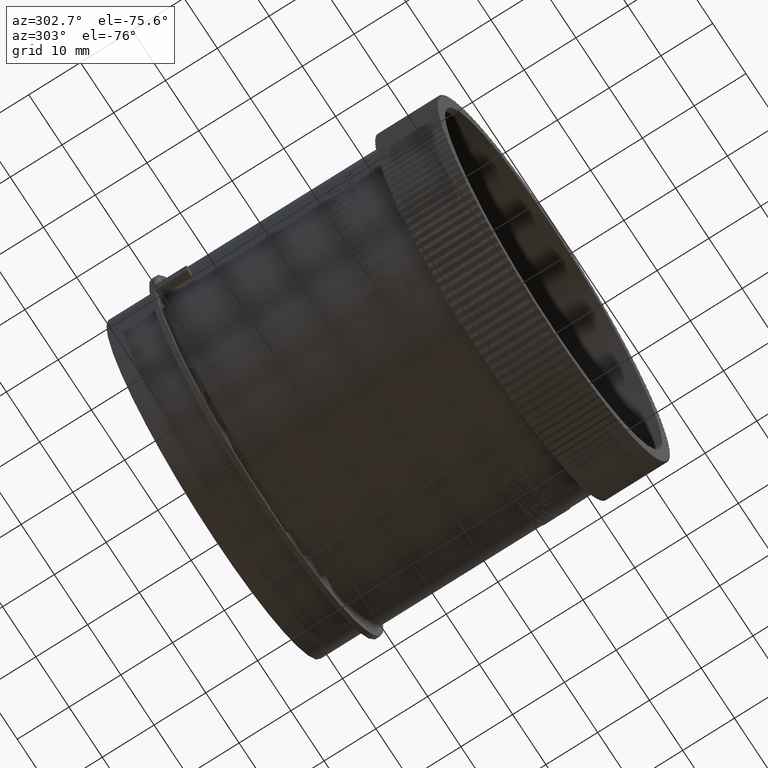
[diagram: clean part render]
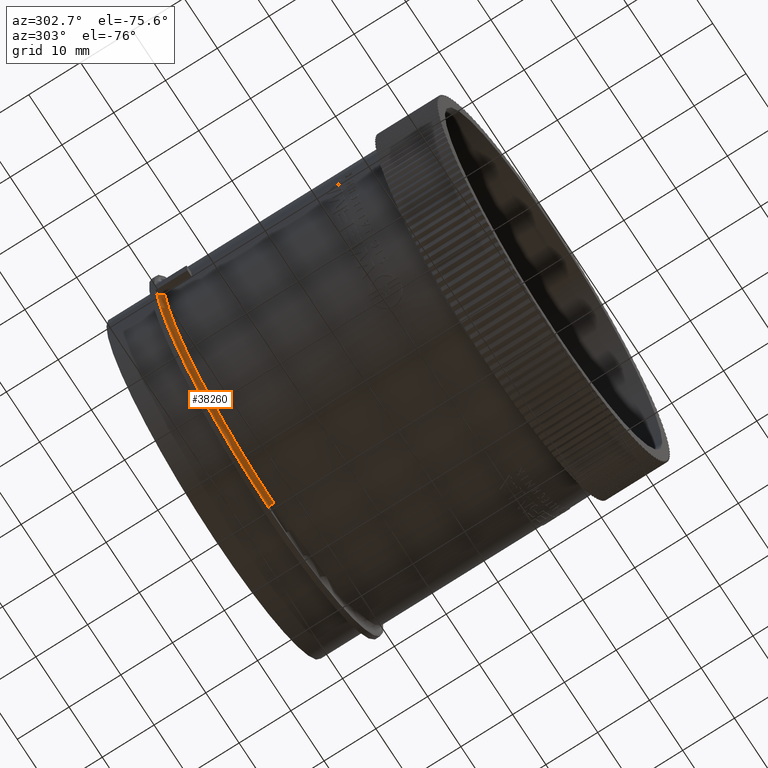
[diagram: same view with one face highlighted and labeled with its STEP entity id]
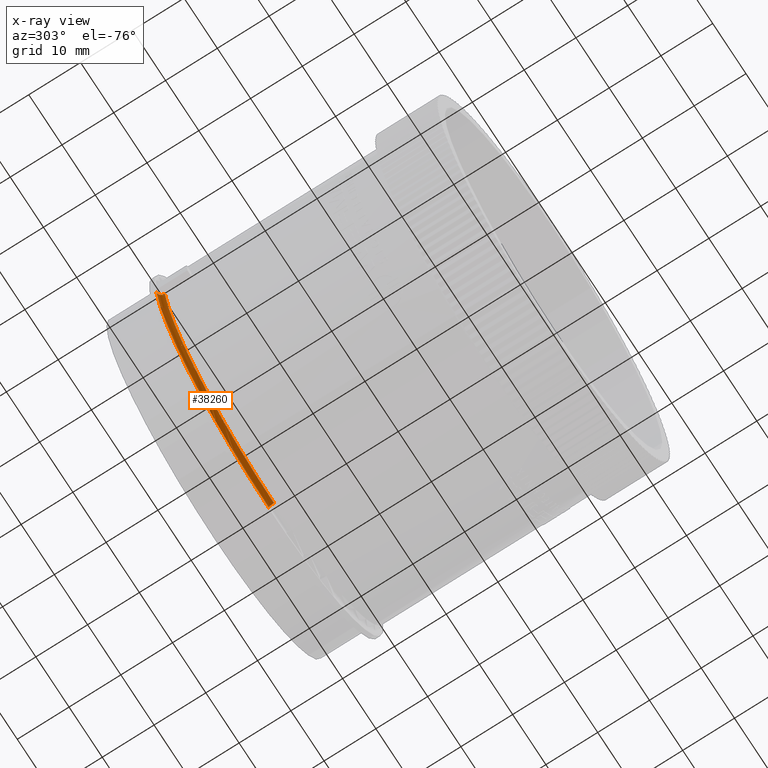
[diagram: x-ray of the same camera — body ghosted, the highlighted face saturated]
A machine part, auxiliary view. The second image highlights one B-rep face of the part: STEP entity #38260.
The next image is the same camera in x-ray: the body ghosted, the highlighted face saturated — about 0% of this face is hidden behind the body in this view.
In plain terms, the highlighted toroidal blend (fillet) surface has major radius 34.1 mm and minor (blend) radius 1 mm.
Its self-contained STEP definition (entity closure, byte-faithful):
#169 = CARTESIAN_POINT ( 'NONE',  ( -1.282664490863889300, 2.165354330708384000, -0.3964331924044282600 ) ) ;
#343 = CARTESIAN_POINT ( 'NONE',  ( -1.197073304359399500, 2.165354330705581800, -0.6078892121746987100 ) ) ;
#507 = CARTESIAN_POINT ( 'NONE',  ( -1.060198254568408300, 2.165354326473242400, -0.8237081716349248200 ) ) ;
#680 = CARTESIAN_POINT ( 'NONE',  ( -1.009187776710478700, 2.165354330642957700, -0.8854516595367594200 ) ) ;
#836 = CARTESIAN_POINT ( 'NONE',  ( -0.9471824442016545400, 2.165354326718651500, -0.9514897616183253200 ) ) ;
#1015 = CARTESIAN_POINT ( 'NONE',  ( -0.8346103294295806900, 2.165354330708566100, -1.051563099087176900 ) ) ;
#1184 = CARTESIAN_POINT ( 'NONE',  ( -0.7854531837904607000, 2.165354329822095200, -1.088783512074798200 ) ) ;
#1347 = CARTESIAN_POINT ( 'NONE',  ( -0.7230082499648047300, 2.165354326537197500, -1.131223731274377100 ) ) ;
#1498 = CARTESIAN_POINT ( 'NONE',  ( -0.6039387920076640900, 2.165354330708561600, -1.199006596578336500 ) ) ;
#1662 = CARTESIAN_POINT ( 'NONE',  ( -0.5435034612630185200, 2.165354329673638400, -1.227594138368329300 ) ) ;
#1829 = CARTESIAN_POINT ( 'NONE',  ( -0.4758498519653853700, 2.165354327160311500, -1.255387463876481300 ) ) ;
#2001 = CARTESIAN_POINT ( 'NONE',  ( -0.2289258029922482700, 2.165354328113090700, -1.322872054372719700 ) ) ;
#2171 = CARTESIAN_POINT ( 'NONE',  ( -0.1614192044583004100, 2.165354329956338000, -1.332793454672196700 ) ) ;
#2346 = CARTESIAN_POINT ( 'NONE',  ( -0.06576361073954722900, 2.165354330708968400, -1.340941770892593700 ) ) ;
#2629 = VERTEX_POINT ( 'NONE', #21823 ) ;
#2771 = DIRECTION ( 'NONE',  ( -1.000000000000000000, 0.0000000000000000000, -0.0000000000000000000 ) ) ;
#3894 = CARTESIAN_POINT ( 'NONE',  ( 0.0000000000000000000, 2.125984251968504600, 0.0000000000000000000 ) ) ;
#4003 = VERTEX_POINT ( 'NONE', #36291 ) ;
#4053 = CARTESIAN_POINT ( 'NONE',  ( -1.280467915328512300, 2.165354330708662900, -0.4034366420713405600 ) ) ;
#4219 = CARTESIAN_POINT ( 'NONE',  ( -1.183497001516208300, 2.165354330708550500, -0.6338020899899314800 ) ) ;
#4386 = CARTESIAN_POINT ( 'NONE',  ( -1.039204480240415900, 2.165354330202531800, -0.8499875682834737700 ) ) ;
#4551 = CARTESIAN_POINT ( 'NONE',  ( -0.9859676748288434000, 2.165354329585451200, -0.9111819016148193800 ) ) ;
#4725 = CARTESIAN_POINT ( 'NONE',  ( -0.9387874972623730900, 2.165354326546775600, -0.9597332104116022000 ) ) ;
#4902 = CARTESIAN_POINT ( 'NONE',  ( -0.8343675322937302900, 2.165354330708662500, -1.051755646996231300 ) ) ;
#5067 = CARTESIAN_POINT ( 'NONE',  ( -0.7808755878113815600, 2.165354329566798500, -1.092071053113567800 ) ) ;
#5232 = CARTESIAN_POINT ( 'NONE',  ( -0.7207666105685097700, 2.165354326530532600, -1.132653982159914400 ) ) ;
#5393 = CARTESIAN_POINT ( 'NONE',  ( -0.6018579160656021300, 2.165354330707052600, -1.200052832661127500 ) ) ;
#5568 = CARTESIAN_POINT ( 'NONE',  ( -0.5405441430751266600, 2.165354329532046800, -1.228902363002986500 ) ) ;
#5590 = AXIS2_PLACEMENT_3D ( 'NONE', #37184, #48655, #13806 ) ;
#5726 = CARTESIAN_POINT ( 'NONE',  ( -0.4271637060433467500, 2.165354328263154200, -1.272932397494876100 ) ) ;
#5899 = CARTESIAN_POINT ( 'NONE',  ( -0.2273670670312859500, 2.165354327919207100, -1.323141805480036100 ) ) ;
#6076 = CARTESIAN_POINT ( 'NONE',  ( -0.1472693433661430900, 2.165354330346546800, -1.334441874246228500 ) ) ;
#6240 = CARTESIAN_POINT ( 'NONE',  ( -0.01878574148268146600, 2.165354330420501000, -1.342526038514607800 ) ) ;
#7397 = ORIENTED_EDGE ( 'NONE', *, *, #32790, .T. ) ;
#7816 = DIRECTION ( 'NONE',  ( 0.0000000000000000000, 0.0000000000000000000, -1.000000000000000000 ) ) ;
#7974 = CARTESIAN_POINT ( 'NONE',  ( -1.280300942638733700, 2.165354330708656200, -0.4039662169849965700 ) ) ;
#8146 = CARTESIAN_POINT ( 'NONE',  ( -1.179934317546667700, 2.165354330708663300, -0.6404020524045201900 ) ) ;
#8312 = CARTESIAN_POINT ( 'NONE',  ( -1.030948388699091800, 2.165354330705076900, -0.8599467880319131600 ) ) ;
#8489 = CARTESIAN_POINT ( 'NONE',  ( -0.9849442664134934200, 2.165354329512011700, -0.9122883602291824700 ) ) ;
#8662 = CARTESIAN_POINT ( 'NONE',  ( -0.9368465142265640600, 2.165354326531646400, -0.9616271109147144200 ) ) ;
#8829 = CARTESIAN_POINT ( 'NONE',  ( -0.8342229212919131100, 2.165354330708647400, -1.051870295271908100 ) ) ;
#8996 = CARTESIAN_POINT ( 'NONE',  ( -0.7785728523033296200, 2.165354329425769100, -1.093714320261554000 ) ) ;
#9165 = CARTESIAN_POINT ( 'NONE',  ( -0.6826390132033954800, 2.165354327054265700, -1.156369368507191600 ) ) ;
#9326 = CARTESIAN_POINT ( 'NONE',  ( -0.5953739579539398800, 2.165354330711457100, -1.203290370390480000 ) ) ;
#9494 = CARTESIAN_POINT ( 'NONE',  ( -0.5264122967398990900, 2.165354328802469900, -1.235035407641711800 ) ) ;
#9654 = CARTESIAN_POINT ( 'NONE',  ( -0.3876795542433111300, 2.165354330002640100, -1.285376064790003400 ) ) ;
#9830 = CARTESIAN_POINT ( 'NONE',  ( -0.2219391580833532700, 2.165354327747548900, -1.324065652650011400 ) ) ;
#9988 = CARTESIAN_POINT ( 'NONE',  ( -0.1236057383186619000, 2.165354330693749900, -1.336869537673698100 ) ) ;
#10438 = ORIENTED_EDGE ( 'NONE', *, *, #11088, .F. ) ;
#10682 = CARTESIAN_POINT ( 'NONE',  ( -1.327041999721553900, 2.165354330708662500, -0.1655017135546710500 ) ) ;
#11088 = EDGE_CURVE ( 'NONE', #4003, #2629, #13712, .T. ) ;
#11891 = CARTESIAN_POINT ( 'NONE',  ( -1.279434268079202100, 2.165354330708547400, -0.4067074102289805500 ) ) ;
#12057 = CARTESIAN_POINT ( 'NONE',  ( -1.179063649970600400, 2.165354330708651400, -0.6420033884779496900 ) ) ;
#12219 = CARTESIAN_POINT ( 'NONE',  ( -1.029889316776893200, 2.165354330708664700, -0.8612125809875758000 ) ) ;
#12388 = CARTESIAN_POINT ( 'NONE',  ( -0.9844406102454441600, 2.165354329475003900, -0.9128320170642075800 ) ) ;
#12400 = CIRCLE ( 'NONE', #48833, 0.03937007874015724400 ) ;
#12555 = CARTESIAN_POINT ( 'NONE',  ( -0.9339771871338554700, 2.165354326522293400, -0.9644176709276655000 ) ) ;
#12727 = CARTESIAN_POINT ( 'NONE',  ( -0.8334387148666530000, 2.165354330708054900, -1.052491656306940200 ) ) ;
#12894 = CARTESIAN_POINT ( 'NONE',  ( -0.7723191916490600400, 2.165354329023515300, -1.098144790905479300 ) ) ;
#13063 = CARTESIAN_POINT ( 'NONE',  ( -0.6271785663116974400, 2.165354330235413900, -1.187069958265914800 ) ) ;
#13234 = CARTESIAN_POINT ( 'NONE',  ( -0.5724626028576013100, 2.165354330679005300, -1.214459660051672600 ) ) ;
#13406 = CARTESIAN_POINT ( 'NONE',  ( -0.5018126766266828300, 2.165354327575226300, -1.245259342361471300 ) ) ;
#13578 = CARTESIAN_POINT ( 'NONE',  ( -0.3577249080080661100, 2.165354330764452500, -1.294021814437498600 ) ) ;
#13712 = B_SPLINE_CURVE_WITH_KNOTS ( 'NONE', 3,
 ( #26265, #10682, #41844, #18595, #45719, #22486, #49610, #26433 ),
 .UNSPECIFIED., .F., .F.,
 ( 4, 2, 2, 4 ),
 ( 0.0000000000000000000, 0.0003906745936104586700, 0.0007813491872209173500, 0.001562698374441819700 ),
 .UNSPECIFIED. ) ;
#13752 = CARTESIAN_POINT ( 'NONE',  ( -0.2055463476719809100, 2.165354328114979900, -1.326734621654967800 ) ) ;
#13806 = DIRECTION ( 'NONE',  ( 0.0000000000000000000, 0.0000000000000000000, -1.000000000000000000 ) ) ;
#13920 = CARTESIAN_POINT ( 'NONE',  ( -0.1063882873390323100, 2.165354330708213900, -1.338298900031716900 ) ) ;
#15816 = CARTESIAN_POINT ( 'NONE',  ( -1.273948800795933200, 2.165354330704826400, -0.4236423548067626600 ) ) ;
#15999 = CARTESIAN_POINT ( 'NONE',  ( -1.174716802119554900, 2.165354330708528800, -0.6499496118122958200 ) ) ;
#16161 = CARTESIAN_POINT ( 'NONE',  ( -1.029799881095473800, 2.165354330708625600, -0.8613194202535045000 ) ) ;
#16326 = B_SPLINE_CURVE_WITH_KNOTS ( 'NONE', 3,
 ( #19619, #42866, #46743, #23509, #169, #27474, #4053, #31376, #7974, #35267, #11891, #39154, #15816, #43039, #19779, #46907, #23673, #343, #27650, #4219, #31540, #8146, #35436, #12057, #39311, #15999, #43210, #19946, #47077, #23866, #507, #27821, #4386, #31724, #8312, #35603, #12219, #39487, #16161, #43380, #20118, #47248, #24020, #680, #27994, #4551, #31890, #8489, #35771, #12388, #39653, #16336, #43550, #20289, #47427, #24191, #836, #28169, #4725, #32058, #8662, #35950, #12555, #39816, #16502, #43719, #20461, #47602, #24373, #1015, #28331, #4902, #32233, #8829, #36108, #12727, #39984, #16672, #43885, #20641, #47764, #24542, #1184, #28510, #5067, #32394, #8996, #36278, #12894, #40159, #16844, #44053, #20807, #47939, #24711, #1347, #28683, #5232, #32552, #9165, #36459, #13063, #40321, #17028, #44214, #20963, #48106, #24884, #1498, #28852, #5393, #32722, #9326, #36622, #13234, #40482, #17188, #44388, #21133, #48269, #25054, #1662, #29016, #5568, #32879, #9494, #36787, #13406, #40656, #17361, #44545, #21307, #48425, #25219, #1829, #29186, #5726, #33037, #9654, #36953, #13578, #40834, #17535, #44698, #21476, #48601, #25384, #2001, #29346, #5899, #33196, #9830, #37126, #13752, #40993, #17699, #44865, #21642, #48760, #25561, #2171, #29518, #6076, #33371, #9988, #37297, #13920, #41157, #17867, #45041, #21810, #48912, #25741, #2346, #29679, #6240, #33537 ),
 .UNSPECIFIED., .F., .F.,
 ( 4, 2, 1, 2, 2, 1, 1, 1, 2, 2, 2, 2, 2, 2, 1, 1, 1, 2, 2, 1, 1, 1, 2, 2, 1, 1, 2, 2, 2, 2, 2, 1, 1, 1, 1, 2, 2, 1, 2, 2, 1, 1, 1, 2, 1, 2, 2, 1, 1, 1, 1, 2, 2, 2, 2, 2, 1, 2, 2, 1, 1, 2, 2, 1, 1, 2, 1, 1, 2, 2, 1, 1, 2, 2, 2, 2, 1, 2, 2, 1, 1, 2, 2, 1, 1, 2, 2, 1, 2, 2, 2, 2, 2, 2, 1, 1, 2, 2, 2, 1, 2, 2, 2, 2, 2, 1, 2, 2, 1, 2, 4 ),
 ( 0.0000000000000000000, 0.02897238731376237200, 0.03078316152087253900, 0.03123585507265008400, 0.03134902846059450800, 0.03146220184853892900, 0.03168854862442768700, 0.03259393572798267200, 0.03621548414220261700, 0.04345858097064258400, 0.05794477462752246200, 0.06156632304174244200, 0.06247171014529742700, 0.06269805692118615700, 0.06292440369707488800, 0.06337709724885239000, 0.06518787145596242900, 0.07243096828440275000, 0.08691716194128343300, 0.09053871035550356500, 0.09234948456261366000, 0.09325487166616869300, 0.09370756521794620900, 0.09376415191191840600, 0.09382073860589060200, 0.09393391199383500900, 0.09416025876972417000, 0.09778180718394835500, 0.1014033555981725400, 0.1015165289861170400, 0.1015731156800893200, 0.1016297023740615800, 0.1018560491499506800, 0.1023087427017288800, 0.1032141298052852700, 0.1050249040123980700, 0.1086464524266237400, 0.1090991459784019400, 0.1093254927542910700, 0.1095518395301801800, 0.1104572266337367400, 0.1122680008408498700, 0.1158895492550760900, 0.1231326460835286300, 0.1249434202906417900, 0.1249717136376279300, 0.1250000069846140800, 0.1250565936785864900, 0.1251697670665314600, 0.1253961138424215200, 0.1258488073942017600, 0.1267541944977622300, 0.1303757429120042700, 0.1321865171191252700, 0.1326392106709055100, 0.1328655574467956200, 0.1330919042226857700, 0.1339972913262463000, 0.1376188397404884400, 0.1394296139476095000, 0.1403350010511700300, 0.1405613478270601700, 0.1407876946029503200, 0.1412403881547305800, 0.1448619365689726400, 0.1521050333974567300, 0.1557265818116987400, 0.1561792753634789800, 0.1562358620574515200, 0.1562924487514240300, 0.1564056221393690400, 0.1566319689152589900, 0.1575373560188189900, 0.1593481302259389700, 0.1629696786401788900, 0.1638750657437388900, 0.1639882391316838900, 0.1640448258256563800, 0.1641014125196289000, 0.1643277592955188500, 0.1647804528472987500, 0.1665912270544183400, 0.1702127754686575700, 0.1711181625722173700, 0.1715708561239972800, 0.1717972028998872300, 0.1720235496757772400, 0.1738343238828969100, 0.1810774207113757000, 0.1846989691256150900, 0.1883205175398544600, 0.2028067111968121500, 0.2030330579727021600, 0.2031462313606471300, 0.2032594047485920800, 0.2037120983003722600, 0.2046174854039325400, 0.2064282596110531600, 0.2100498080252943000, 0.2105025015770744800, 0.2107288483529645700, 0.2109551951288546600, 0.2118605822324149700, 0.2136713564395356100, 0.2172929048537768900, 0.2181982919573372300, 0.2186509855091174100, 0.2191036790608975600, 0.2209144532680182000, 0.2245360016822595100, 0.2317790985107421300 ),
 .UNSPECIFIED. ) ;
#16336 = CARTESIAN_POINT ( 'NONE',  ( -0.9820649540088219900, 2.165354329297410500, -0.9153906428852777200 ) ) ;
#16502 = CARTESIAN_POINT ( 'NONE',  ( -0.9148723612087614800, 2.165354326769995700, -0.9826547188074443700 ) ) ;
#16672 = CARTESIAN_POINT ( 'NONE',  ( -0.8305688292429951300, 2.165354330706942100, -1.054758693390493100 ) ) ;
#16844 = CARTESIAN_POINT ( 'NONE',  ( -0.7510333913630514700, 2.165354327560753400, -1.112857785904091100 ) ) ;
#17028 = CARTESIAN_POINT ( 'NONE',  ( -0.6058956564681707800, 2.165354330707567300, -1.198020385752275300 ) ) ;
#17155 = TOROIDAL_SURFACE ( 'NONE', #5590, 1.342519685039370400, 0.03937007874015716100 ) ;
#17188 = CARTESIAN_POINT ( 'NONE',  ( -0.5503397643094316600, 2.165354329979441800, -1.224551232842593800 ) ) ;
#17361 = CARTESIAN_POINT ( 'NONE',  ( -0.4879125751651748300, 2.165354327229692900, -1.250741092434237300 ) ) ;
#17535 = CARTESIAN_POINT ( 'NONE',  ( -0.2708050540839384600, 2.165354334648090800, -1.315519690337202400 ) ) ;
#17699 = CARTESIAN_POINT ( 'NONE',  ( -0.1756909400302259000, 2.165354329429146000, -1.330985610314927800 ) ) ;
#17867 = CARTESIAN_POINT ( 'NONE',  ( -0.1023011186588453600, 2.165354330708659800, -1.338616443093933100 ) ) ;
#18595 = CARTESIAN_POINT ( 'NONE',  ( -1.312458289654162600, 2.160386341649336300, -0.1642258042516273300 ) ) ;
#19619 = CARTESIAN_POINT ( 'NONE',  ( -1.332222971600006700, 2.165354330708661600, -0.1659549898600817000 ) ) ;
#19779 = CARTESIAN_POINT ( 'NONE',  ( -1.261000204900295100, 2.165354330691422000, -0.4610627436891423500 ) ) ;
#19946 = CARTESIAN_POINT ( 'NONE',  ( -1.148250388524497500, 2.165354330745221200, -0.6959285518843952900 ) ) ;
#20118 = CARTESIAN_POINT ( 'NONE',  ( -1.029515660179206400, 2.165354330708082000, -0.8616588965809853800 ) ) ;
#20289 = CARTESIAN_POINT ( 'NONE',  ( -0.9712732796563210400, 2.165354328436301900, -0.9268676059484398700 ) ) ;
#20461 = CARTESIAN_POINT ( 'NONE',  ( -0.8634892534181044500, 2.165354329947067200, -1.028210418486765100 ) ) ;
#20641 = CARTESIAN_POINT ( 'NONE',  ( -0.8167108796874756900, 2.165354330756960300, -1.065612767896068300 ) ) ;
#20807 = CARTESIAN_POINT ( 'NONE',  ( -0.7323466330755441500, 2.165354326671887100, -1.125216390340323400 ) ) ;
#20963 = CARTESIAN_POINT ( 'NONE',  ( -0.6042742740203418400, 2.165354330708686900, -1.198837646842040300 ) ) ;
#21133 = CARTESIAN_POINT ( 'NONE',  ( -0.5449728165233649300, 2.165354329742217800, -1.226942428103574300 ) ) ;
#21307 = CARTESIAN_POINT ( 'NONE',  ( -0.4828735679973724100, 2.165354327179815900, -1.252692005369837800 ) ) ;
#21476 = CARTESIAN_POINT ( 'NONE',  ( -0.2303948449134809700, 2.165354328364685000, -1.322616419406966700 ) ) ;
#21642 = CARTESIAN_POINT ( 'NONE',  ( -0.1695008639545074500, 2.165354329668367900, -1.331786027564766600 ) ) ;
#21810 = CARTESIAN_POINT ( 'NONE',  ( -0.09976593131931990600, 2.165354330708657600, -1.338808119593477600 ) ) ;
#21823 = CARTESIAN_POINT ( 'NONE',  ( -1.292975532899538300, 2.125984251968504200, -0.1625212839013673900 ) ) ;
#21923 = CARTESIAN_POINT ( 'NONE',  ( 3.299849352701119800E-016, 2.125984251968504600, -1.303149606299213200 ) ) ;
#22486 = CARTESIAN_POINT ( 'NONE',  ( -1.297243746111358000, 2.146580969960291800, -0.1628947041709125600 ) ) ;
#22876 = AXIS2_PLACEMENT_3D ( 'NONE', #3894, #31229, #7816 ) ;
#23509 = CARTESIAN_POINT ( 'NONE',  ( -1.284383518200210100, 2.165354330706935800, -0.3908185042840927600 ) ) ;
#23673 = CARTESIAN_POINT ( 'NONE',  ( -1.224594558487253700, 2.165354330693499000, -0.5524341661447822500 ) ) ;
#23866 = CARTESIAN_POINT ( 'NONE',  ( -1.091638398135359700, 2.165354321876382700, -0.7826058701645548500 ) ) ;
#24020 = CARTESIAN_POINT ( 'NONE',  ( -1.023384412274139600, 2.165354330738698900, -0.8689996627989100600 ) ) ;
#24033 = EDGE_CURVE ( 'NONE', #46202, #27992, #12400, .T. ) ;
#24191 = CARTESIAN_POINT ( 'NONE',  ( -0.9541650374620291900, 2.165354327121920900, -0.9445048944439217200 ) ) ;
#24373 = CARTESIAN_POINT ( 'NONE',  ( -0.8388130903674890800, 2.165354330704799300, -1.048229084136578200 ) ) ;
#24542 = CARTESIAN_POINT ( 'NONE',  ( -0.7942072802255029100, 2.165354330247745400, -1.082444208491896600 ) ) ;
#24711 = CARTESIAN_POINT ( 'NONE',  ( -0.7239191362567178900, 2.165354326542280100, -1.130641019166684200 ) ) ;
#24884 = CARTESIAN_POINT ( 'NONE',  ( -0.6041615410828888900, 2.165354330708643800, -1.198894418412743900 ) ) ;
#25054 = CARTESIAN_POINT ( 'NONE',  ( -0.5436731452158393200, 2.165354329681682600, -1.227518978552256200 ) ) ;
#25219 = CARTESIAN_POINT ( 'NONE',  ( -0.4812857052388958000, 2.165354327173310000, -1.253302992909482800 ) ) ;
#25384 = CARTESIAN_POINT ( 'NONE',  ( -0.2290674053607358900, 2.165354328137288700, -1.322847474189628300 ) ) ;
#25561 = CARTESIAN_POINT ( 'NONE',  ( -0.1661775401504017900, 2.165354329789584300, -1.332204149114574900 ) ) ;
#25741 = CARTESIAN_POINT ( 'NONE',  ( -0.07984259245570878000, 2.165354330707792000, -1.340201078106886300 ) ) ;
#26190 = CARTESIAN_POINT ( 'NONE',  ( 3.299849352701120300E-016, 2.125984251968504600, -1.342519685039370600 ) ) ;
#26265 = CARTESIAN_POINT ( 'NONE',  ( -1.332222971600006700, 2.165354330708661600, -0.1659549898600817000 ) ) ;
#26433 = CARTESIAN_POINT ( 'NONE',  ( -1.292975532899538300, 2.125984251968504200, -0.1625212839013673900 ) ) ;
#27474 = CARTESIAN_POINT ( 'NONE',  ( -1.280908699756485800, 2.165354330708658900, -0.4020364146220883300 ) ) ;
#27650 = CARTESIAN_POINT ( 'NONE',  ( -1.191238547474316800, 2.165354330707617500, -0.6192611972898524100 ) ) ;
#27821 = CARTESIAN_POINT ( 'NONE',  ( -1.050622647962717900, 2.165354328434886200, -0.8359287517942272100 ) ) ;
#27992 = VERTEX_POINT ( 'NONE', #33235 ) ;
#27994 = CARTESIAN_POINT ( 'NONE',  ( -0.9993172716127251000, 2.165354330512241800, -0.8967179553591608800 ) ) ;
#28169 = CARTESIAN_POINT ( 'NONE',  ( -0.9399752160220614700, 2.165354326566191200, -0.9585694817959660200 ) ) ;
#28194 = ORIENTED_EDGE ( 'NONE', *, *, #24033, .F. ) ;
#28331 = CARTESIAN_POINT ( 'NONE',  ( -0.8344810042321209000, 2.165354330708643400, -1.051665672197688300 ) ) ;
#28510 = CARTESIAN_POINT ( 'NONE',  ( -0.7836524081795677200, 2.165354329726950900, -1.090081113188164500 ) ) ;
#28683 = CARTESIAN_POINT ( 'NONE',  ( -0.7224367626138078500, 2.165354326535112100, -1.131588856241586100 ) ) ;
#28821 = FACE_OUTER_BOUND ( 'NONE', #49941, .T. ) ;
#28852 = CARTESIAN_POINT ( 'NONE',  ( -0.6030164687844503700, 2.165354330707872400, -1.199470813833077400 ) ) ;
#29016 = CARTESIAN_POINT ( 'NONE',  ( -0.5426305298318073700, 2.165354329632276400, -1.227980666918263400 ) ) ;
#29186 = CARTESIAN_POINT ( 'NONE',  ( -0.4516368555721131900, 2.165354327257353900, -1.264511719158988500 ) ) ;
#29346 = CARTESIAN_POINT ( 'NONE',  ( -0.2285546708165206700, 2.165354328054010400, -1.322936434921161900 ) ) ;
#29518 = CARTESIAN_POINT ( 'NONE',  ( -0.1577661169032582900, 2.165354330067192500, -1.333229351702542600 ) ) ;
#29679 = CARTESIAN_POINT ( 'NONE',  ( -0.03759331358313553600, 2.165354330599170500, -1.342128267105313000 ) ) ;
#30129 = DIRECTION ( 'NONE',  ( 0.0000000000000000000, 0.0000000000000000000, 1.000000000000000000 ) ) ;
#31229 = DIRECTION ( 'NONE',  ( 0.0000000000000000000, -1.000000000000000000, 0.0000000000000000000 ) ) ;
#31376 = CARTESIAN_POINT ( 'NONE',  ( -1.280423667112949900, 2.165354330708661100, -0.4035770147663662600 ) ) ;
#31540 = CARTESIAN_POINT ( 'NONE',  ( -1.181926283160607700, 2.165354330708655800, -0.6367265511349219400 ) ) ;
#31724 = CARTESIAN_POINT ( 'NONE',  ( -1.033434331305671500, 2.165354330645663100, -0.8569666279400404200 ) ) ;
#31890 = CARTESIAN_POINT ( 'NONE',  ( -0.9855601270752583100, 2.165354329556570300, -0.9116228835545534500 ) ) ;
#32058 = CARTESIAN_POINT ( 'NONE',  ( -0.9376201767032812400, 2.165354326536478500, -0.9608727635473970400 ) ) ;
#32233 = CARTESIAN_POINT ( 'NONE',  ( -0.8343200383942119800, 2.165354330708661600, -1.051793302049342600 ) ) ;
#32394 = CARTESIAN_POINT ( 'NONE',  ( -0.7798408302567134700, 2.165354329504039400, -1.092810204965325900 ) ) ;
#32552 = CARTESIAN_POINT ( 'NONE',  ( -0.7107362494580329300, 2.165354326524771900, -1.139029907903842400 ) ) ;
#32722 = CARTESIAN_POINT ( 'NONE',  ( -0.5984607095252538800, 2.165354330707103300, -1.201752618760295800 ) ) ;
#32790 = EDGE_CURVE ( 'NONE', #4003, #27992, #16326, .T. ) ;
#32879 = CARTESIAN_POINT ( 'NONE',  ( -0.5329894537365659200, 2.165354329156052400, -1.232216725011266600 ) ) ;
#33037 = CARTESIAN_POINT ( 'NONE',  ( -0.3975778480239365300, 2.165354329564592300, -1.282350922560303600 ) ) ;
#33196 = CARTESIAN_POINT ( 'NONE',  ( -0.2257773491487858600, 2.165354327840044200, -1.323414421857515500 ) ) ;
#33235 = CARTESIAN_POINT ( 'NONE',  ( 1.159862326382816300E-018, 2.165354329293014400, -1.342530242893992300 ) ) ;
#33371 = CARTESIAN_POINT ( 'NONE',  ( -0.1408882272290047100, 2.165354330462416300, -1.335123653559954700 ) ) ;
#33537 = CARTESIAN_POINT ( 'NONE',  ( 1.159862326382816300E-018, 2.165354329293014400, -1.342530242893992300 ) ) ;
#35267 = CARTESIAN_POINT ( 'NONE',  ( -1.280116371679465500, 2.165354330708643800, -0.4045510916165182500 ) ) ;
#35436 = CARTESIAN_POINT ( 'NONE',  ( -1.179681879738216900, 2.165354330708659800, -0.6408667137331003300 ) ) ;
#35603 = CARTESIAN_POINT ( 'NONE',  ( -1.030014536524123100, 2.165354330708611800, -0.8610629851204509900 ) ) ;
#35632 = CIRCLE ( 'NONE', #22876, 1.303149606299213200 ) ;
#35771 = CARTESIAN_POINT ( 'NONE',  ( -0.9847056561620800600, 2.165354329494524300, -0.9125459807572444700 ) ) ;
#35950 = CARTESIAN_POINT ( 'NONE',  ( -0.9363442756235793600, 2.165354326529541400, -0.9621162328570381800 ) ) ;
#36108 = CARTESIAN_POINT ( 'NONE',  ( -0.8339814063312281900, 2.165354330708531000, -1.052061723815722600 ) ) ;
#36212 = EDGE_CURVE ( 'NONE', #2629, #46202, #35632, .T. ) ;
#36278 = CARTESIAN_POINT ( 'NONE',  ( -0.7754151836600186000, 2.165354329228244000, -1.095961684987498500 ) ) ;
#36291 = CARTESIAN_POINT ( 'NONE',  ( -1.332222971600006700, 2.165354330708661600, -0.1659549898600817000 ) ) ;
#36459 = CARTESIAN_POINT ( 'NONE',  ( -0.6550863935356600100, 2.165354328869133500, -1.172050152784764200 ) ) ;
#36622 = CARTESIAN_POINT ( 'NONE',  ( -0.5836199080672587200, 2.165354330697753800, -1.209060252998852800 ) ) ;
#36787 = CARTESIAN_POINT ( 'NONE',  ( -0.5111966577261274300, 2.165354328013654200, -1.241449801095975100 ) ) ;
#36953 = CARTESIAN_POINT ( 'NONE',  ( -0.3678156227775658000, 2.165354330618832500, -1.291195994217040300 ) ) ;
#37126 = CARTESIAN_POINT ( 'NONE',  ( -0.2185021101076373200, 2.165354327775173900, -1.324641795046579200 ) ) ;
#37184 = CARTESIAN_POINT ( 'NONE',  ( 3.299849352701120300E-016, 2.125984251968504600, -2.731847993664263200E-016 ) ) ;
#37297 = CARTESIAN_POINT ( 'NONE',  ( -0.1145660100990339600, 2.165354330702152100, -1.337639413722079500 ) ) ;
#38260 = ADVANCED_FACE ( 'NONE', ( #28821 ), #17155, .F. ) ;
#39154 = CARTESIAN_POINT ( 'NONE',  ( -1.276761411201056600, 2.165354330707582900, -0.4150903581658715300 ) ) ;
#39311 = CARTESIAN_POINT ( 'NONE',  ( -1.178135076586660700, 2.165354330708633100, -0.6437077316273085400 ) ) ;
#39487 = CARTESIAN_POINT ( 'NONE',  ( -1.029854315562709800, 2.165354330708656700, -0.8612543933116403300 ) ) ;
#39653 = CARTESIAN_POINT ( 'NONE',  ( -0.9837785823557891900, 2.165354329426082200, -0.9135461612851569800 ) ) ;
#39816 = CARTESIAN_POINT ( 'NONE',  ( -0.9282798374225992300, 2.165354326534567600, -0.9699243048116459300 ) ) ;
#39984 = CARTESIAN_POINT ( 'NONE',  ( -0.8321144335965235900, 2.165354330706782200, -1.053539503674422400 ) ) ;
#40159 = CARTESIAN_POINT ( 'NONE',  ( -0.7601361548948742900, 2.165354328204576200, -1.106676032791083400 ) ) ;
#40321 = CARTESIAN_POINT ( 'NONE',  ( -0.6166465395469819000, 2.165354330648444400, -1.192578469049003100 ) ) ;
#40482 = CARTESIAN_POINT ( 'NONE',  ( -0.5542067029981404500, 2.165354330120046200, -1.222803554148242700 ) ) ;
#40656 = CARTESIAN_POINT ( 'NONE',  ( -0.4910637288983119000, 2.165354327294696900, -1.249505856904840100 ) ) ;
#40834 = CARTESIAN_POINT ( 'NONE',  ( -0.3096877433256465800, 2.165354330321742600, -1.306907837897815200 ) ) ;
#40993 = CARTESIAN_POINT ( 'NONE',  ( -0.1933834765176122300, 2.165354328708272800, -1.328626354932928900 ) ) ;
#41157 = CARTESIAN_POINT ( 'NONE',  ( -0.1041690195619147200, 2.165354330708620700, -1.338473419981763800 ) ) ;
#41844 = CARTESIAN_POINT ( 'NONE',  ( -1.321958364562925800, 2.164332328967632200, -0.1650569531087900100 ) ) ;
#42866 = CARTESIAN_POINT ( 'NONE',  ( -1.322929770957113300, 2.165354330708662500, -0.2405381678526752900 ) ) ;
#43039 = CARTESIAN_POINT ( 'NONE',  ( -1.266631925210334000, 2.165354330697333700, -0.4452374358259344500 ) ) ;
#43210 = CARTESIAN_POINT ( 'NONE',  ( -1.161493607373166100, 2.165354330694462300, -0.6736878581066670900 ) ) ;
#43380 = CARTESIAN_POINT ( 'NONE',  ( -1.029659335756395000, 2.165354330708420400, -0.8614873064126363800 ) ) ;
#43550 = CARTESIAN_POINT ( 'NONE',  ( -0.9784138727997314700, 2.165354329014258300, -0.9193000667556063800 ) ) ;
#43719 = CARTESIAN_POINT ( 'NONE',  ( -0.8876084284001664000, 2.165354328002746100, -1.007636600908402600 ) ) ;
#43885 = CARTESIAN_POINT ( 'NONE',  ( -0.8244983124242909500, 2.165354330709727400, -1.059528077037656700 ) ) ;
#44053 = CARTESIAN_POINT ( 'NONE',  ( -0.7384047694857458500, 2.165354326916825400, -1.121244599545231100 ) ) ;
#44214 = CARTESIAN_POINT ( 'NONE',  ( -0.6045690932749880900, 2.165354330708609200, -1.198689098541593000 ) ) ;
#44388 = CARTESIAN_POINT ( 'NONE',  ( -0.5457439084539030800, 2.165354329776901600, -1.226599365734610800 ) ) ;
#44519 = ORIENTED_EDGE ( 'NONE', *, *, #36212, .F. ) ;
#44545 = CARTESIAN_POINT ( 'NONE',  ( -0.4843657767838682200, 2.165354327189384700, -1.252116449731102600 ) ) ;
#44698 = CARTESIAN_POINT ( 'NONE',  ( -0.2310071935848782600, 2.165354328464075300, -1.322509308855023300 ) ) ;
#44865 = CARTESIAN_POINT ( 'NONE',  ( -0.1726586441077783400, 2.165354329549659800, -1.331383305553821800 ) ) ;
#45041 = CARTESIAN_POINT ( 'NONE',  ( -0.1011339573569680200, 2.165354330708663800, -1.338705103715529800 ) ) ;
#45719 = CARTESIAN_POINT ( 'NONE',  ( -1.308106614855746300, 2.157466196803989400, -0.1638450820394151400 ) ) ;
#46202 = VERTEX_POINT ( 'NONE', #21923 ) ;
#46743 = CARTESIAN_POINT ( 'NONE',  ( -1.307361013578436600, 2.165354330678923600, -0.3143381993786094100 ) ) ;
#46907 = CARTESIAN_POINT ( 'NONE',  ( -1.241349167743409900, 2.165354330682866600, -0.5126087370922080000 ) ) ;
#47077 = CARTESIAN_POINT ( 'NONE',  ( -1.115253002038616200, 2.165354329134078900, -0.7485446796923449500 ) ) ;
#47248 = CARTESIAN_POINT ( 'NONE',  ( -1.027711777672307700, 2.165354330703723700, -0.8638126064629211300 ) ) ;
#47427 = CARTESIAN_POINT ( 'NONE',  ( -0.9654375711106817400, 2.165354327961369400, -0.9329297641917261300 ) ) ;
#47602 = CARTESIAN_POINT ( 'NONE',  ( -0.8429958274752020800, 2.165354330620409500, -1.044869796470181600 ) ) ;
#47764 = CARTESIAN_POINT ( 'NONE',  ( -0.8004116809672959800, 2.165354330430393900, -1.077849413646354100 ) ) ;
#47939 = CARTESIAN_POINT ( 'NONE',  ( -0.7262102067642393100, 2.165354326560052100, -1.129173423365669200 ) ) ;
#48106 = CARTESIAN_POINT ( 'NONE',  ( -0.6042681182580812400, 2.165354330708661100, -1.198840736896567900 ) ) ;
#48269 = CARTESIAN_POINT ( 'NONE',  ( -0.5441940392227886400, 2.165354329706092000, -1.227288022649938500 ) ) ;
#48425 = CARTESIAN_POINT ( 'NONE',  ( -0.4818849600838451800, 2.165354327175155600, -1.253072646647847700 ) ) ;
#48601 = CARTESIAN_POINT ( 'NONE',  ( -0.2294762119307982300, 2.165354328208893600, -1.322776452024254000 ) ) ;
#48655 = DIRECTION ( 'NONE',  ( 0.0000000000000000000, -1.000000000000000000, -0.0000000000000000000 ) ) ;
#48760 = CARTESIAN_POINT ( 'NONE',  ( -0.1673677728271928400, 2.165354329746820700, -1.332055427003677500 ) ) ;
#48833 = AXIS2_PLACEMENT_3D ( 'NONE', #26190, #2771, #30129 ) ;
#48912 = CARTESIAN_POINT ( 'NONE',  ( -0.09390771080907071900, 2.165354330708610500, -1.339239456828871500 ) ) ;
#49610 = CARTESIAN_POINT ( 'NONE',  ( -1.292975532899538500, 2.136385977754188900, -0.1625212839013673600 ) ) ;
#49941 = EDGE_LOOP ( 'NONE', ( #28194, #44519, #10438, #7397 ) ) ;